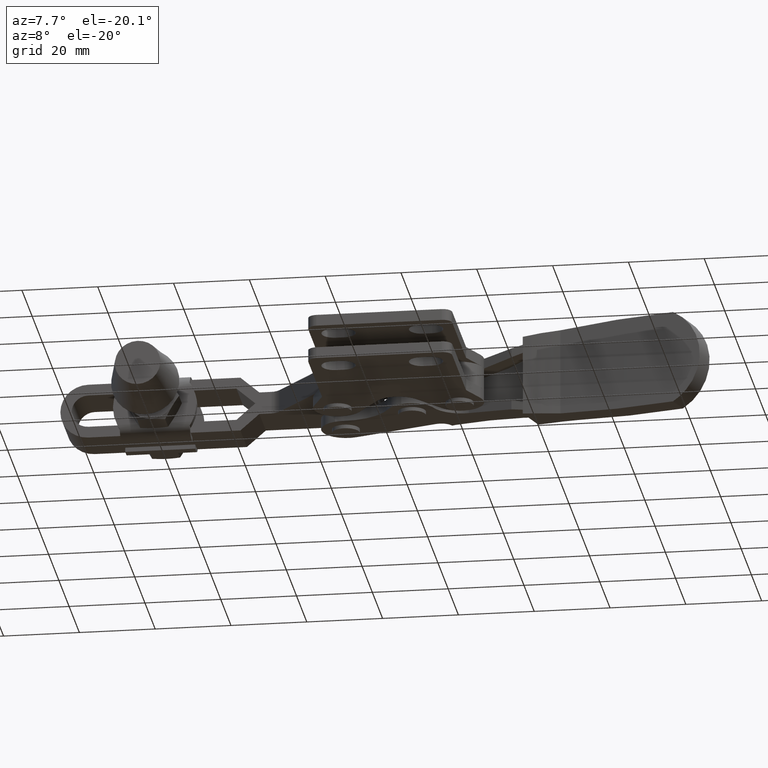
[diagram: clean part render]
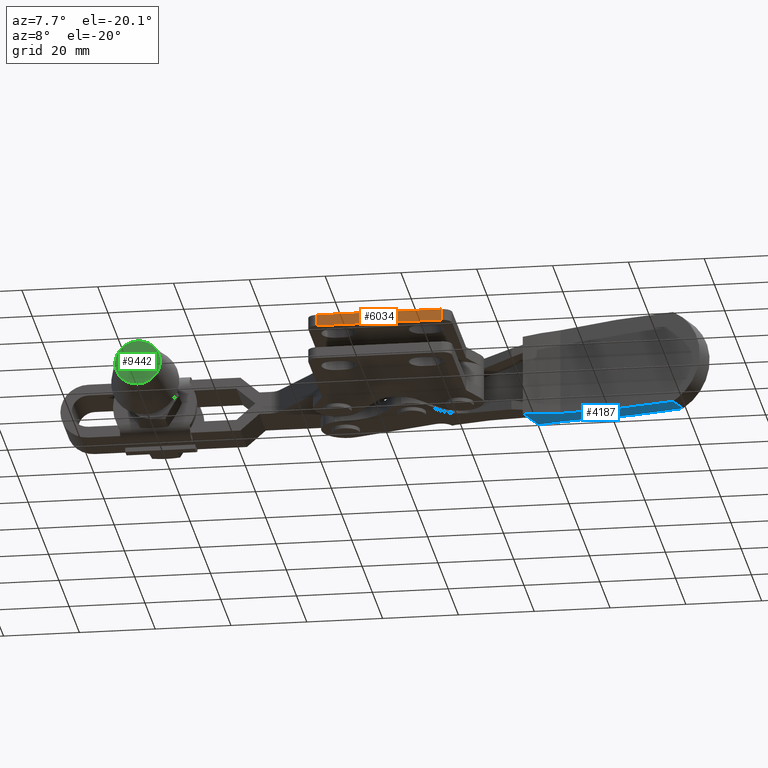
[diagram: same view with three faces highlighted in distinct colors, each labeled with its STEP entity id]
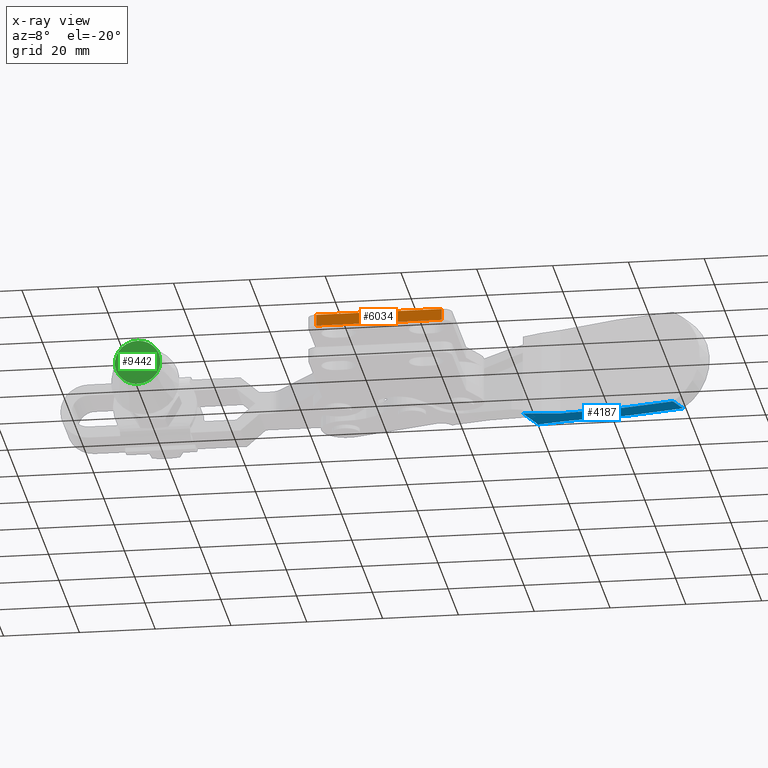
[diagram: x-ray of the same camera — body ghosted, the three highlighted faces saturated]
A machine part, auxiliary view with three faces highlighted in distinct colors.
The next image is the same camera in x-ray (body ghosted, the three faces saturated) — at least one of them is partly hidden behind the body in this view.
Their STEP definitions:

[orange] entity #6034 — the highlighted planar face has unit normal (-0, 1, 0).
#28 = ORIENTED_EDGE ( 'NONE', *, *, #4095, .T. ) ;
#73 = PLANE ( 'NONE',  #5769 ) ;
#217 = CARTESIAN_POINT ( 'NONE',  ( 38.99999999995363000, -13.44000292339766000, 5.995809861063778900 ) ) ;
#700 = LINE ( 'NONE', #4884, #9191 ) ;
#907 = VECTOR ( 'NONE', #5136, 1000.000000000000000 ) ;
#926 = VERTEX_POINT ( 'NONE', #8561 ) ;
#938 = DIRECTION ( 'NONE',  ( 0.0000000000000000000, -0.0000000000000000000, 1.000000000000000000 ) ) ;
#1185 = ORIENTED_EDGE ( 'NONE', *, *, #1233, .F. ) ;
#1225 = CARTESIAN_POINT ( 'NONE',  ( 5.999999999953487000, -13.44000292339766000, 2.995809861063779300 ) ) ;
#1233 = EDGE_CURVE ( 'NONE', #926, #6558, #700, .T. ) ;
#1902 = EDGE_LOOP ( 'NONE', ( #28, #7923, #1185, #8895 ) ) ;
#3405 = DIRECTION ( 'NONE',  ( 1.000000000000000000, 0.0000000000000000000, 0.0000000000000000000 ) ) ;
#3868 = VECTOR ( 'NONE', #10580, 1000.000000000000000 ) ;
#4095 = EDGE_CURVE ( 'NONE', #8076, #5870, #5579, .T. ) ;
#4162 = VECTOR ( 'NONE', #9092, 1000.000000000000000 ) ;
#4884 = CARTESIAN_POINT ( 'NONE',  ( 5.999999999953487000, -13.44000292339766000, 5.995809861063778900 ) ) ;
#4947 = CARTESIAN_POINT ( 'NONE',  ( 5.999999999953487000, -13.44000292339766000, 5.995809861063778900 ) ) ;
#5136 = DIRECTION ( 'NONE',  ( -0.0000000000000000000, -0.0000000000000000000, -1.000000000000000000 ) ) ;
#5414 = EDGE_CURVE ( 'NONE', #926, #8076, #10425, .T. ) ;
#5579 = LINE ( 'NONE', #6632, #4162 ) ;
#5645 = CARTESIAN_POINT ( 'NONE',  ( 5.999999999953487000, -13.44000292339766000, 5.995809861063778900 ) ) ;
#5769 = AXIS2_PLACEMENT_3D ( 'NONE', #4947, #5838, #938 ) ;
#5838 = DIRECTION ( 'NONE',  ( 0.0000000000000000000, 1.000000000000000000, 0.0000000000000000000 ) ) ;
#5870 = VERTEX_POINT ( 'NONE', #9607 ) ;
#6034 = ADVANCED_FACE ( 'NONE', ( #10410 ), #73, .F. ) ;
#6099 = EDGE_CURVE ( 'NONE', #6558, #5870, #9406, .T. ) ;
#6558 = VERTEX_POINT ( 'NONE', #7513 ) ;
#6632 = CARTESIAN_POINT ( 'NONE',  ( 5.999999999953487000, -13.44000292339766000, 2.995809861063779300 ) ) ;
#7513 = CARTESIAN_POINT ( 'NONE',  ( 38.99999999995363000, -13.44000292339766000, 5.995809861063778900 ) ) ;
#7923 = ORIENTED_EDGE ( 'NONE', *, *, #6099, .F. ) ;
#8076 = VERTEX_POINT ( 'NONE', #1225 ) ;
#8561 = CARTESIAN_POINT ( 'NONE',  ( 5.999999999953487000, -13.44000292339766000, 5.995809861063778900 ) ) ;
#8895 = ORIENTED_EDGE ( 'NONE', *, *, #5414, .T. ) ;
#9092 = DIRECTION ( 'NONE',  ( 1.000000000000000000, 0.0000000000000000000, 0.0000000000000000000 ) ) ;
#9191 = VECTOR ( 'NONE', #3405, 1000.000000000000000 ) ;
#9406 = LINE ( 'NONE', #217, #907 ) ;
#9607 = CARTESIAN_POINT ( 'NONE',  ( 38.99999999995363000, -13.44000292339766000, 2.995809861063779300 ) ) ;
#10410 = FACE_OUTER_BOUND ( 'NONE', #1902, .T. ) ;
#10425 = LINE ( 'NONE', #5645, #3868 ) ;
#10580 = DIRECTION ( 'NONE',  ( -0.0000000000000000000, -0.0000000000000000000, -1.000000000000000000 ) ) ;

[blue] entity #4187 — the highlighted cylindrical surface (partial cylindrical patch) has radius 333.97 mm, axis along (0.3102, 0.9507, -0).
#586 = ORIENTED_EDGE ( 'NONE', *, *, #10543, .T. ) ;
#605 = VERTEX_POINT ( 'NONE', #10397 ) ;
#609 = EDGE_CURVE ( 'NONE', #3398, #605, #7615, .T. ) ;
#810 = CARTESIAN_POINT ( 'NONE',  ( 66.60828030566717900, 27.89021362880610500, -11.50666461016448700 ) ) ;
#960 = VERTEX_POINT ( 'NONE', #2496 ) ;
#1099 = CYLINDRICAL_SURFACE ( 'NONE', #8423, 333.9696061633342800 ) ;
#1298 = CARTESIAN_POINT ( 'NONE',  ( 86.07520526745189200, 16.80321929039907400, -12.64769986807520800 ) ) ;
#1301 = CARTESIAN_POINT ( 'NONE',  ( 98.20033906263819300, 20.01443364904166000, -12.43799414531151900 ) ) ;
#1756 = DIRECTION ( 'NONE',  ( 0.3101901272761489700, 0.9506745420702116300, -6.138348435031067000E-033 ) ) ;
#1809 = EDGE_CURVE ( 'NONE', #960, #605, #5323, .T. ) ;
#2091 = CARTESIAN_POINT ( 'NONE',  ( 58.42050504770447400, 31.91331388746186800, -10.67990410551269800 ) ) ;
#2159 = ORIENTED_EDGE ( 'NONE', *, *, #2472, .T. ) ;
#2399 = CARTESIAN_POINT ( 'NONE',  ( 65.40400007890426100, 28.48194214346851500, -11.39828730508615500 ) ) ;
#2454 = ORIENTED_EDGE ( 'NONE', *, *, #609, .T. ) ;
#2472 = EDGE_CURVE ( 'NONE', #960, #5793, #3338, .T. ) ;
#2494 = CARTESIAN_POINT ( 'NONE',  ( 67.86260594998057600, 27.43464103977638800, -11.60747286379930900 ) ) ;
#2496 = CARTESIAN_POINT ( 'NONE',  ( 96.33387897931697800, 14.29408367986270200, -12.43799414531151900 ) ) ;
#2896 = CARTESIAN_POINT ( 'NONE',  ( 46.69295030932251200, -4.029441055828322700, -10.67990410551269800 ) ) ;
#3023 = EDGE_CURVE ( 'NONE', #5793, #8201, #7201, .T. ) ;
#3085 = CARTESIAN_POINT ( 'NONE',  ( 65.58622850458670000, 21.81455142387918800, -11.57355518563012400 ) ) ;
#3147 = VECTOR ( 'NONE', #1756, 1000.000000000000000 ) ;
#3338 =( BOUNDED_CURVE ( )  B_SPLINE_CURVE ( 3, ( #4637, #1298, #5845, #5281 ),
 .UNSPECIFIED., .F., .F. ) 
 B_SPLINE_CURVE_WITH_KNOTS ( ( 4, 4 ),
 ( 1.550885717419652000, 1.645467350796613500 ),
 .UNSPECIFIED. ) 
 CURVE ( )  GEOMETRIC_REPRESENTATION_ITEM ( )  RATIONAL_B_SPLINE_CURVE ( ( 1.000000000000000000, 0.9992546651414118100, 0.9992546651414118100, 1.000000000000000000 ) ) 
 REPRESENTATION_ITEM ( '' )  );
#3398 = VERTEX_POINT ( 'NONE', #3918 ) ;
#3649 = ORIENTED_EDGE ( 'NONE', *, *, #3818, .T. ) ;
#3766 = CARTESIAN_POINT ( 'NONE',  ( 60.74577005770547100, 30.77078444955618900, -10.94910436399500500 ) ) ;
#3801 = CARTESIAN_POINT ( 'NONE',  ( 63.07370585061690300, 29.62694271043566700, -11.18857614078326000 ) ) ;
#3818 = EDGE_CURVE ( 'NONE', #4496, #8337, #7483, .T. ) ;
#3918 = CARTESIAN_POINT ( 'NONE',  ( 69.16711789370295100, 27.11557470973236800, -11.70054177588013500 ) ) ;
#4187 = ADVANCED_FACE ( 'NONE', ( #4292 ), #1099, .T. ) ;
#4234 = CARTESIAN_POINT ( 'NONE',  ( 78.83094589458122000, 24.75193047538488100, -12.38999652783284200 ) ) ;
#4292 = FACE_OUTER_BOUND ( 'NONE', #7729, .T. ) ;
#4492 = EDGE_CURVE ( 'NONE', #8337, #3398, #8078, .T. ) ;
#4496 = VERTEX_POINT ( 'NONE', #9079 ) ;
#4628 = CARTESIAN_POINT ( 'NONE',  ( 65.40400007890426100, 28.48194214346851500, -11.39828730508615500 ) ) ;
#4637 = CARTESIAN_POINT ( 'NONE',  ( 96.33387897931697800, 14.29408367986270200, -12.43799414531151900 ) ) ;
#4660 = CARTESIAN_POINT ( 'NONE',  ( 69.16711789370295100, 27.11557470973236800, -11.70054177588013500 ) ) ;
#4905 = VECTOR ( 'NONE', #9474, 1000.000000000000000 ) ;
#5092 = CARTESIAN_POINT ( 'NONE',  ( 86.15411072830539800, -16.90499607613391200, -12.43799414531151900 ) ) ;
#5281 = CARTESIAN_POINT ( 'NONE',  ( 65.58622850458670000, 21.81455142387918800, -11.57355518563012400 ) ) ;
#5323 = LINE ( 'NONE', #5092, #3147 ) ;
#5751 = CARTESIAN_POINT ( 'NONE',  ( 65.40400007890426100, 28.48194214346851500, -11.39828730508615500 ) ) ;
#5793 = VERTEX_POINT ( 'NONE', #8675 ) ;
#5845 = CARTESIAN_POINT ( 'NONE',  ( 75.81834364603564300, 19.31191168763103900, -12.35933862249322200 ) ) ;
#6014 = ORIENTED_EDGE ( 'NONE', *, *, #4492, .T. ) ;
#6256 = CARTESIAN_POINT ( 'NONE',  ( 62.18384443825945600, 21.87663356185126800, -11.33013674216790700 ) ) ;
#6637 = ORIENTED_EDGE ( 'NONE', *, *, #1809, .F. ) ;
#6785 = DIRECTION ( 'NONE',  ( 0.3101901272761489700, 0.9506745420702116300, -6.138348435031067000E-033 ) ) ;
#6894 = CARTESIAN_POINT ( 'NONE',  ( 55.50891388266397500, 22.98983324084432300, -10.67990410551269800 ) ) ;
#6988 = CARTESIAN_POINT ( 'NONE',  ( 58.82468097880975900, 22.26936620198484100, -11.03419205917139800 ) ) ;
#7201 = B_SPLINE_CURVE_WITH_KNOTS ( 'NONE', 3,
 ( #3085, #6256, #6988, #6894 ),
 .UNSPECIFIED., .F., .F.,
 ( 4, 4 ),
 ( 0.0000000000000000000, 0.01018489909579380900 ),
 .UNSPECIFIED. ) ;
#7276 = CARTESIAN_POINT ( 'NONE',  ( 88.51512048240987000, 22.38330973556465500, -12.63597741483904700 ) ) ;
#7483 =( BOUNDED_CURVE ( )  B_SPLINE_CURVE ( 3, ( #2091, #3766, #3801, #4628 ),
 .UNSPECIFIED., .F., .F. ) 
 B_SPLINE_CURVE_WITH_KNOTS ( ( 4, 4 ),
 ( 1.466226621879488400, 1.489393417423005900 ),
 .UNSPECIFIED. ) 
 CURVE ( )  GEOMETRIC_REPRESENTATION_ITEM ( )  RATIONAL_B_SPLINE_CURVE ( ( 1.000000000000000000, 0.9999552754654336100, 0.9999552754654336100, 1.000000000000000000 ) ) 
 REPRESENTATION_ITEM ( '' )  );
#7615 =( BOUNDED_CURVE ( )  B_SPLINE_CURVE ( 3, ( #4660, #4234, #7276, #1301 ),
 .UNSPECIFIED., .F., .F. ) 
 B_SPLINE_CURVE_WITH_KNOTS ( ( 4, 4 ),
 ( 4.643001409332055300, 4.732299589759934500 ),
 .UNSPECIFIED. ) 
 CURVE ( )  GEOMETRIC_REPRESENTATION_ITEM ( )  RATIONAL_B_SPLINE_CURVE ( ( 1.000000000000000000, 0.9993355966349852800, 0.9993355966349852800, 1.000000000000000000 ) ) 
 REPRESENTATION_ITEM ( '' )  );
#7729 = EDGE_LOOP ( 'NONE', ( #10249, #586, #3649, #6014, #2454, #6637, #2159 ) ) ;
#7966 = CARTESIAN_POINT ( 'NONE',  ( 55.50891388266397500, 22.98983324084432300, -10.67990410551269800 ) ) ;
#8078 = B_SPLINE_CURVE_WITH_KNOTS ( 'NONE', 3,
 ( #5751, #810, #2494, #8238 ),
 .UNSPECIFIED., .F., .F.,
 ( 4, 4 ),
 ( 0.0000000000000000000, 0.004014893948430626900 ),
 .UNSPECIFIED. ) ;
#8201 = VERTEX_POINT ( 'NONE', #7966 ) ;
#8238 = CARTESIAN_POINT ( 'NONE',  ( 69.16711789370295100, 27.11557470973236800, -11.70054177588013500 ) ) ;
#8337 = VERTEX_POINT ( 'NONE', #2399 ) ;
#8423 = AXIS2_PLACEMENT_3D ( 'NONE', #10051, #6785, #10088 ) ;
#8675 = CARTESIAN_POINT ( 'NONE',  ( 65.58622850458670000, 21.81455142387918800, -11.57355518563012400 ) ) ;
#9079 = CARTESIAN_POINT ( 'NONE',  ( 58.42050504770447400, 31.91331388746186800, -10.67990410551269800 ) ) ;
#9474 = DIRECTION ( 'NONE',  ( 0.3101901272761489700, 0.9506745420702116300, -6.138348435031067000E-033 ) ) ;
#9811 = LINE ( 'NONE', #2896, #4905 ) ;
#10051 = CARTESIAN_POINT ( 'NONE',  ( 79.83298155132955300, -14.84251120127302500, 321.4654160243984500 ) ) ;
#10088 = DIRECTION ( 'NONE',  ( -0.9506745420702115100, 0.3101901272761489700, 0.0000000000000000000 ) ) ;
#10249 = ORIENTED_EDGE ( 'NONE', *, *, #3023, .T. ) ;
#10397 = CARTESIAN_POINT ( 'NONE',  ( 98.20033906263819300, 20.01443364904166000, -12.43799414531151900 ) ) ;
#10543 = EDGE_CURVE ( 'NONE', #8201, #4496, #9811, .T. ) ;

[green] entity #9442 — the highlighted planar face has unit normal (0, -1, 0).
#1238 = DIRECTION ( 'NONE',  ( -0.0000000000000000000, -1.000000000000000000, -0.0000000000000000000 ) ) ;
#2310 = AXIS2_PLACEMENT_3D ( 'NONE', #3317, #9061, #4112 ) ;
#2657 = DIRECTION ( 'NONE',  ( -0.0000000000000000000, -1.000000000000000000, -0.0000000000000000000 ) ) ;
#3317 = CARTESIAN_POINT ( 'NONE',  ( -37.00011493732858300, -2.923405481746689300E-006, 0.04997218533018301500 ) ) ;
#3957 = CIRCLE ( 'NONE', #4487, 6.000000000000000000 ) ;
#4112 = DIRECTION ( 'NONE',  ( 0.0000000000000000000, 0.0000000000000000000, -1.000000000000000000 ) ) ;
#4487 = AXIS2_PLACEMENT_3D ( 'NONE', #7582, #2657, #8404 ) ;
#4560 = VERTEX_POINT ( 'NONE', #7540 ) ;
#4936 = FACE_OUTER_BOUND ( 'NONE', #5702, .T. ) ;
#5067 = ORIENTED_EDGE ( 'NONE', *, *, #10510, .T. ) ;
#5170 = CIRCLE ( 'NONE', #8102, 6.000000000000000000 ) ;
#5702 = EDGE_LOOP ( 'NONE', ( #5067, #9639 ) ) ;
#5876 = CARTESIAN_POINT ( 'NONE',  ( -43.00011493732858300, -2.923405481685456900E-006, -5.950027814669817300 ) ) ;
#6147 = CARTESIAN_POINT ( 'NONE',  ( -43.00011493732858300, -2.923405481685456900E-006, 0.04997218533018301500 ) ) ;
#6534 = PLANE ( 'NONE',  #2310 ) ;
#6987 = DIRECTION ( 'NONE',  ( 0.0000000000000000000, 0.0000000000000000000, -1.000000000000000000 ) ) ;
#7540 = CARTESIAN_POINT ( 'NONE',  ( -43.00011493732858300, -2.923405481685456900E-006, 6.049972185330183500 ) ) ;
#7582 = CARTESIAN_POINT ( 'NONE',  ( -43.00011493732858300, -2.923405481685456900E-006, 0.04997218533018301500 ) ) ;
#8011 = EDGE_CURVE ( 'NONE', #9525, #4560, #3957, .T. ) ;
#8102 = AXIS2_PLACEMENT_3D ( 'NONE', #6147, #1238, #6987 ) ;
#8404 = DIRECTION ( 'NONE',  ( 0.0000000000000000000, 0.0000000000000000000, -1.000000000000000000 ) ) ;
#9061 = DIRECTION ( 'NONE',  ( 0.0000000000000000000, -1.000000000000000000, -0.0000000000000000000 ) ) ;
#9442 = ADVANCED_FACE ( 'NONE', ( #4936 ), #6534, .T. ) ;
#9525 = VERTEX_POINT ( 'NONE', #5876 ) ;
#9639 = ORIENTED_EDGE ( 'NONE', *, *, #8011, .T. ) ;
#10510 = EDGE_CURVE ( 'NONE', #4560, #9525, #5170, .T. ) ;